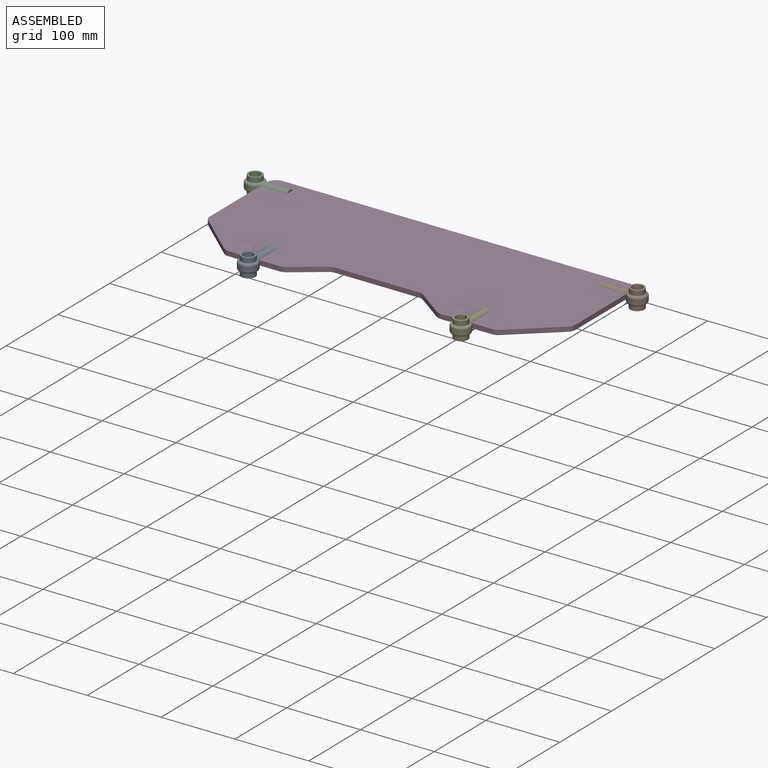
[diagram: assembled view]
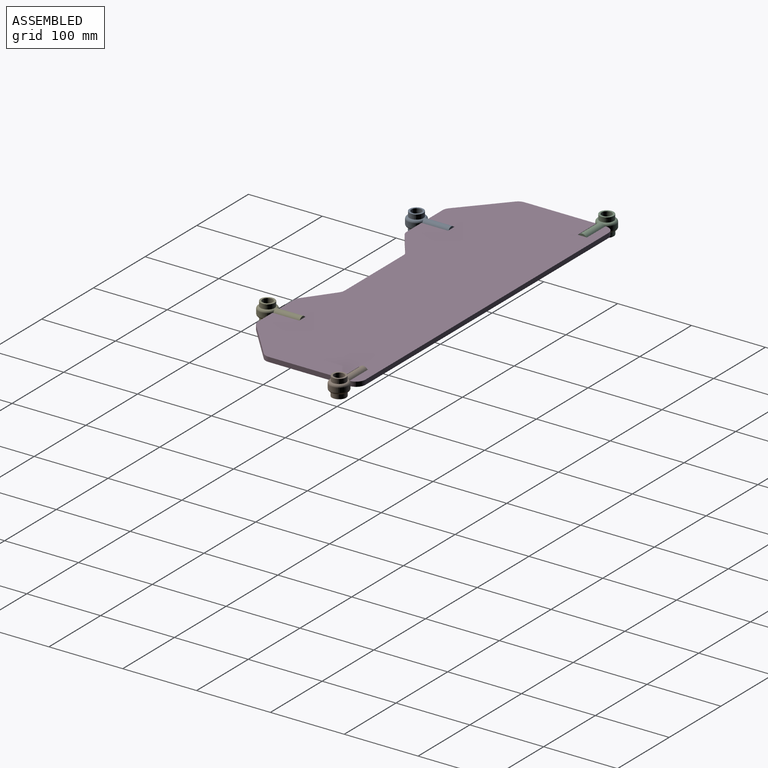
[diagram: assembled view, second angle]
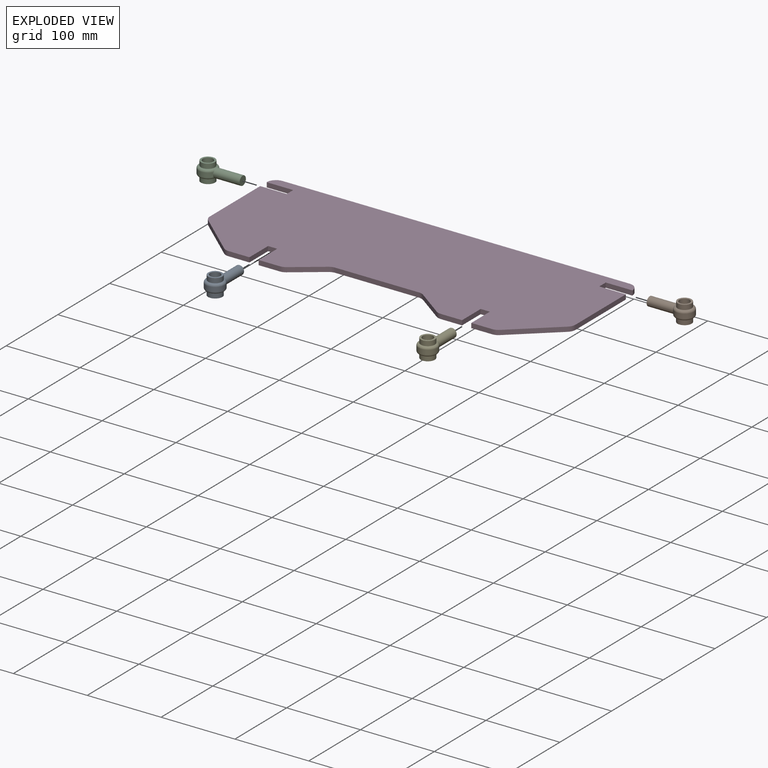
[diagram: exploded view]
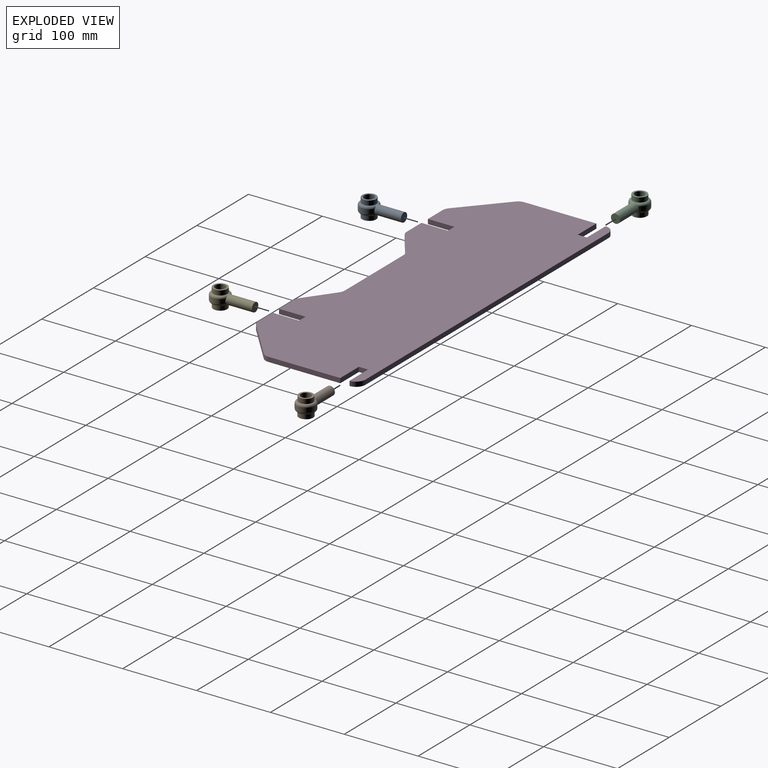
[diagram: exploded view, second angle]
ASSEMBLY  parts=5 mates=4
PART A: 22 faces, bbox 27.5x60.9x25 mm
  f0: plane 14.16x14.16mm, normal (0,0,-1), area 3.6mm2, adj f4,f19
  f1: plane 35.98x0.06mm, normal (1,0,0), area 2.1mm2, adj f2,f5,f9,f11
  f2: cylinder r=12.7mm len=25.4mm, axis (0,0,-1), area 398.6mm2, adj f1,f3,f8,f9,f10,f11,f12,f13
  f3: plane 36x0.06mm, normal (-1,0,0), area 2.1mm2, adj f2,f5,f8,f10
  f4: cylinder r=7mm len=14mm, axis (0,0,-1), area 538.8mm2, adj f0,f14
  f5: plane 12.25x12.25mm, normal (0,-1,0), area 118.2mm2, adj f1,f3,f6,f7,f8,f9,f10,f11
  f6: plane 56.64x19.05mm, normal (0,0,1), area 5.9mm2, adj f5,f10,f11,f13,f16
  f7: plane 37.56x0.06mm, normal (0,0,-1), area 2.2mm2, adj f5,f8,f9,f18
  f8: cylinder r=6.1mm len=37.59mm, axis (0,-1,0), area 345mm2, adj f2,f3,f5,f7,f12,f21
  f9: cylinder r=6.1mm len=37.59mm, axis (0,1,0), area 344.9mm2, adj f1,f2,f5,f7,f12,f21
  f10: cylinder r=6.1mm len=37.59mm, axis (0,1,0), area 344.8mm2, adj f2,f3,f5,f6,f13
  f11: cylinder r=6.1mm len=37.59mm, axis (0,-1,0), area 344.7mm2, adj f1,f2,f5,f6,f13
  f12: torus R=9.53mm, axis (0,0,1), area 330.6mm2, adj f2,f8,f9,f21
  f13: torus R=9.53mm, axis (0,0,1), area 330.6mm2, adj f2,f6,f10,f11
  f14: plane 14x14mm, normal (0,0,-1), area 1.2mm2, adj f4,f15
  f15: cylinder r=6.97mm len=13.94mm, axis (0,0,-1), area 278.2mm2, adj f14,f17
  f16: cylinder r=9.46mm len=18.93mm, axis (0,0,-1), area 377.6mm2, adj f6,f17
  f17: plane 18.93x18.93mm, normal (0,0,1), area 128.6mm2, adj f15,f16
  f18: cylinder r=9.56mm len=19.12mm, axis (0,0,1), area 381.4mm2, adj f7,f20,f21
  f19: cylinder r=7.08mm len=14.16mm, axis (0,0,1), area 282.6mm2, adj f0,f20
  f20: plane 19.12x19.12mm, normal (0,0,-1), area 129.5mm2, adj f18,f19
  f21: plane 19.12x19.12mm, normal (0,0,1), area 2mm2, adj f8,f9,f12,f18
PART B: same geometry as A
PART C: same geometry as A
PART D: 38 faces, bbox 495.3x185.1x6.4 mm
  f0: plane 97.13x6.35mm, normal (-1,0,0), area 616.8mm2, adj f25,f26,f27,f28
  f1: plane 56.56x50.06mm, normal (-0.66,-0.75,0), area 479.6mm2, adj f26,f27,f28,f29
  f2: plane 28.12x6.35mm, normal (0,-1,0), area 178.5mm2, adj f3,f26,f27,f29
  f3: plane 36x6.35mm, normal (1,0,0), area 228.6mm2, adj f2,f4,f26,f27
  f4: plane 12.5x6.35mm, normal (0,-1,0), area 79.4mm2, adj f3,f5,f26,f27
  f5: plane 36x6.35mm, normal (-1,0,0), area 228.6mm2, adj f4,f6,f26,f27
  f6: plane 28.65x6.35mm, normal (0,-1,0), area 181.9mm2, adj f5,f26,f27,f30
  f7: plane 37.54x27.38mm, normal (0.59,-0.81,0), area 295mm2, adj f26,f27,f30,f31
  f8: plane 113.18x6.35mm, normal (0,-1,0), area 718.7mm2, adj f26,f27,f31,f32
  f9: plane 37.54x27.38mm, normal (-0.59,-0.81,0), area 295mm2, adj f26,f27,f32,f33
  f10: plane 28.65x6.35mm, normal (0,-1,0), area 181.9mm2, adj f11,f26,f27,f33
  f11: plane 36x6.35mm, normal (1,0,0), area 228.6mm2, adj f10,f12,f26,f27
  f12: plane 12.5x6.35mm, normal (0,-1,0), area 79.4mm2, adj f11,f13,f26,f27
  f13: plane 36x6.35mm, normal (-1,0,0), area 228.6mm2, adj f12,f14,f26,f27
  f14: plane 28.12x6.35mm, normal (0,-1,0), area 178.5mm2, adj f13,f26,f27,f34
  f15: plane 56.56x50.06mm, normal (0.66,-0.75,0), area 479.6mm2, adj f26,f27,f34,f35
  f16: plane 97.13x6.35mm, normal (1,0,0), area 616.8mm2, adj f17,f26,f27,f35
  f17: plane 36x6.35mm, normal (0,1,0), area 228.6mm2, adj f16,f18,f26,f27
  f18: plane 12.5x6.35mm, normal (1,0,0), area 79.4mm2, adj f17,f19,f26,f27
  f19: plane 35.94x6.35mm, normal (0,-1,0), area 228.2mm2, adj f18,f20,f26,f27
  f20: cylinder r=12.7mm len=6.35mm, axis (0,0,-1), area 1.2mm2, adj f19,f26,f27,f36
  f21: plane 469.9x6.35mm, normal (0,1,0), area 2983.9mm2, adj f26,f27,f36,f37
  f22: cylinder r=12.7mm len=6.35mm, axis (0,0,-1), area 1.2mm2, adj f23,f26,f27,f37
  f23: plane 35.94x6.35mm, normal (0,-1,0), area 228.2mm2, adj f22,f24,f26,f27
  f24: plane 12.5x6.35mm, normal (-1,0,0), area 79.4mm2, adj f23,f25,f26,f27
  f25: plane 36x6.35mm, normal (0,1,0), area 228.6mm2, adj f0,f24,f26,f27
  f26: plane 495.3x185.14mm, normal (0,0,1), area 80786.8mm2, adj f0,f1,f2,f3,f4,f5,f6,f7
  f27: plane 495.3x185.14mm, normal (0,0,-1), area 80786.8mm2, adj f0,f1,f2,f3,f4,f5,f6,f7
  f28: cylinder r=12.7mm len=9.51mm, axis (0,0,-1), area 68.2mm2, adj f0,f1,f26,f27
  f29: cylinder r=12.7mm len=8.42mm, axis (0,0,-1), area 58.4mm2, adj f1,f2,f26,f27
  f30: cylinder r=12.7mm len=7.48mm, axis (0,0,-1), area 50.8mm2, adj f6,f7,f26,f27
  f31: cylinder r=12.7mm len=7.48mm, axis (0,0,1), area 50.8mm2, adj f7,f8,f26,f27
  f32: cylinder r=12.7mm len=7.48mm, axis (0,0,-1), area 50.8mm2, adj f8,f9,f26,f27
  f33: cylinder r=12.7mm len=7.48mm, axis (0,0,-1), area 50.8mm2, adj f9,f10,f26,f27
  f34: cylinder r=12.7mm len=8.42mm, axis (0,0,-1), area 58.4mm2, adj f14,f15,f26,f27
  f35: cylinder r=12.7mm len=9.51mm, axis (0,0,-1), area 68.2mm2, adj f15,f16,f26,f27
  f36: cylinder r=12.7mm len=12.7mm, axis (0,0,-1), area 126mm2, adj f20,f21,f26,f27
  f37: cylinder r=12.7mm len=12.7mm, axis (0,0,-1), area 126mm2, adj f21,f22,f26,f27
PART E: same geometry as A
PLACE A rot(axis=(0,0,1),180deg) t=(-157.96,237.14,136.2)mm
PLACE B rot(axis=(0,0,-1),90deg) t=(244.75,414.35,136.2)mm
PLACE C rot(axis=(0,0,1),90deg) t=(-272.72,414.45,136.2)mm
PLACE D t=(-13.98,280.52,139.18)mm
PLACE E rot(axis=(1,0,0),180deg) t=(130,237.14,148.51)mm
MATE fastened B.f10 <-> D.f18  axis (-1,0,0) through (197.63,414.4,142.36)mm
MATE fastened A.f11 <-> D.f4  axis (0,1,0) through (-157.98,284.26,142.36)mm
MATE fastened C.f10 <-> D.f24  axis (1,0,0) through (-225.6,414.4,142.36)mm
MATE fastened E.f11 <-> D.f12  axis (0,1,0) through (130.01,284.26,142.36)mm
